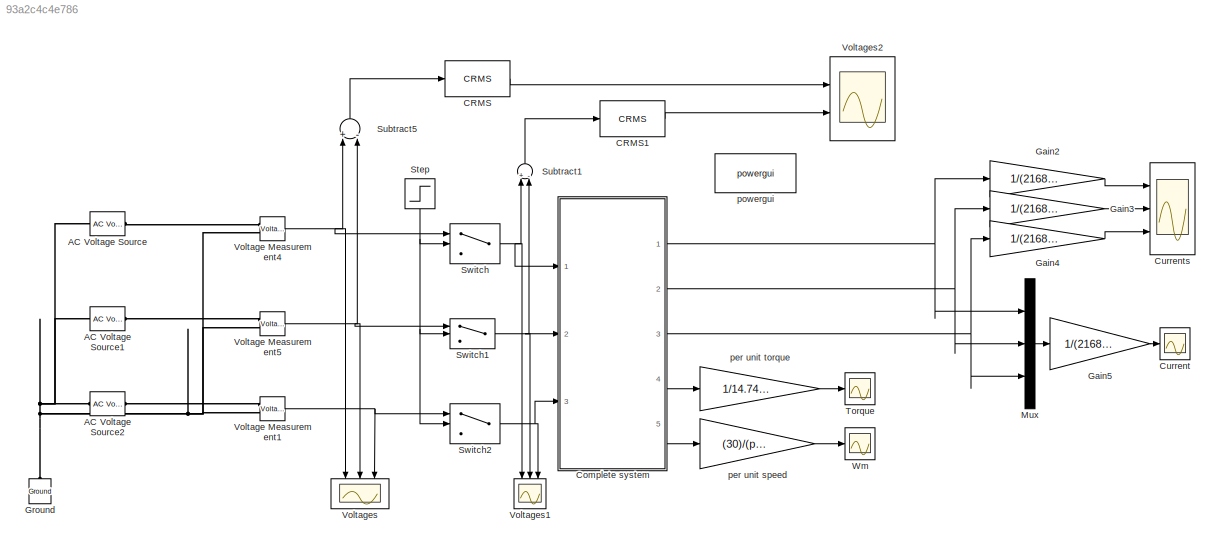
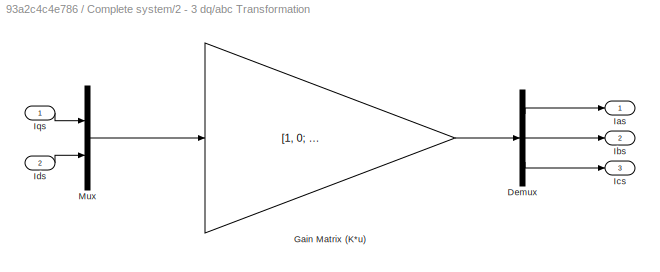
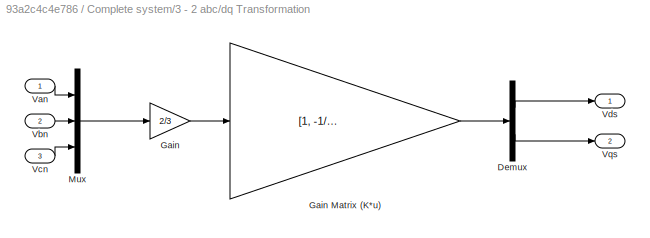
MODEL slx_93a2c4c4e786
KIND model
BLOCK [Reference] AC Voltage Source  REF=powerlib/Electrical
Sources/AC Voltage Source
  Amplitude = 563.38264
  Frequency = 50
  Measurements = None
  Phase = 90
  Ports = [0, 0, 0, 0, 0, 1, 1]
  SampleTime = 0
  SourceBlock = powerlib/Electrical\nSources/AC Voltage Source
  SourceType = AC Voltage Source
BLOCK [Reference] AC Voltage Source1  REF=powerlib/Electrical
Sources/AC Voltage Source
  Amplitude = 563.38264
  Frequency = 50
  Measurements = None
  Phase = -30
  Ports = [0, 0, 0, 0, 0, 1, 1]
  SampleTime = 0
  SourceBlock = powerlib/Electrical\nSources/AC Voltage Source
  SourceType = AC Voltage Source
BLOCK [Reference] AC Voltage Source2  REF=powerlib/Electrical
Sources/AC Voltage Source
  Amplitude = 563.38264
  Frequency = 50
  Measurements = None
  Phase = -150
  Ports = [0, 0, 0, 0, 0, 1, 1]
  SampleTime = 0
  SourceBlock = powerlib/Electrical\nSources/AC Voltage Source
  SourceType = AC Voltage Source
BLOCK [Reference] CRMS  REF=sdolib/RMS Blocks/CRMS
  Ports = [1, 1]
  SourceBlock = sdolib/RMS Blocks/CRMS
  SourceType = Continuous RMS Value Block
BLOCK [Reference] CRMS1  REF=sdolib/RMS Blocks/CRMS
  Ports = [1, 1]
  SourceBlock = sdolib/RMS Blocks/CRMS
  SourceType = Continuous RMS Value Block
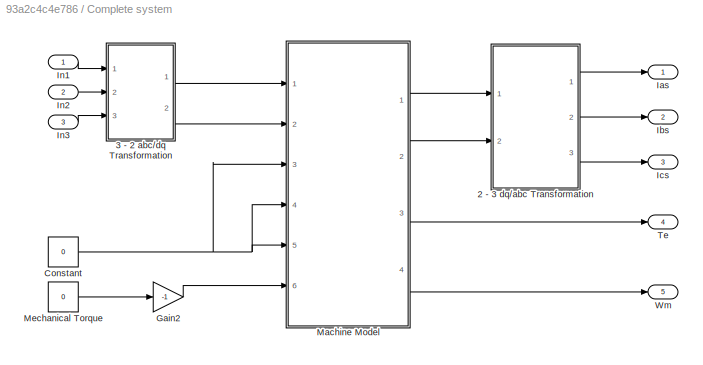
BLOCK [SubSystem] Complete system
  FunctionWithSeparateData = off
  MaskHideContents = off
  MinAlgLoopOccurrences = off
  Opaque = off
  Ports = [3, 5]
  PropExecContextOutsideSubsystem = off
  RTWSystemCode = Auto
  RequestExecContextInheritance = off
BLOCK [SubSystem] Complete system/2 - 3 dq//abc Transformation
  FunctionWithSeparateData = off
  MaskHideContents = off
  MinAlgLoopOccurrences = off
  Opaque = off
  Ports = [2, 3]
  PropExecContextOutsideSubsystem = off
  RTWSystemCode = Auto
  RequestExecContextInheritance = off
BLOCK [Demux] Complete system/2 - 3 dq//abc Transformation/Demux
  DisplayOption = bar
  Outputs = 3
  Ports = [1, 3]
BLOCK [Gain] Complete system/2 - 3 dq//abc Transformation/Gain Matrix (K*u)
  Gain = [1, 0; -1/2 sqrt(3)/2; -1/2, -sqrt(3)/2]
  Multiplication = Matrix(K*u)
  OutDataTypeStr = Inherit: Inherit via internal rule
  ParamDataTypeStr = Inherit: Inherit via internal rule
  SaturateOnIntegerOverflow = off
BLOCK [Outport] Complete system/2 - 3 dq//abc Transformation/Ias
  IconDisplay = Port number
BLOCK [Outport] Complete system/2 - 3 dq//abc Transformation/Ibs
  IconDisplay = Port number
  Port = 2
BLOCK [Outport] Complete system/2 - 3 dq//abc Transformation/Ics
  IconDisplay = Port number
  Port = 3
BLOCK [Inport] Complete system/2 - 3 dq//abc Transformation/Ids
  IconDisplay = Port number
  Port = 2
BLOCK [Inport] Complete system/2 - 3 dq//abc Transformation/Iqs
  IconDisplay = Port number
BLOCK [Mux] Complete system/2 - 3 dq//abc Transformation/Mux
  DisplayOption = bar
  Inputs = 2
  Ports = [2, 1]
BLOCK [SubSystem] Complete system/3 - 2 abc//dq Transformation
  FunctionWithSeparateData = off
  MaskHideContents = off
  MinAlgLoopOccurrences = off
  Opaque = off
  Ports = [3, 2]
  PropExecContextOutsideSubsystem = off
  RTWSystemCode = Auto
  RequestExecContextInheritance = off
BLOCK [Demux] Complete system/3 - 2 abc//dq Transformation/Demux
  DisplayOption = bar
  Outputs = 2
  Ports = [1, 2]
BLOCK [Gain] Complete system/3 - 2 abc//dq Transformation/Gain
  Gain = 2/3
  OutDataTypeStr = Inherit: Inherit via internal rule
  ParamDataTypeStr = Inherit: Inherit via internal rule
  SaturateOnIntegerOverflow = off
BLOCK [Gain] Complete system/3 - 2 abc//dq Transformation/Gain Matrix (K*u)
  Gain = [1, -1/2, -1/2; 0, sqrt(3)/2, - sqrt(3)/2]
  Multiplication = Matrix(K*u)
  OutDataTypeStr = Inherit: Inherit via internal rule
  ParamDataTypeStr = Inherit: Inherit via internal rule
  SaturateOnIntegerOverflow = off
BLOCK [Mux] Complete system/3 - 2 abc//dq Transformation/Mux
  DisplayOption = bar
  Inputs = 3
  Ports = [3, 1]
BLOCK [Inport] Complete system/3 - 2 abc//dq Transformation/Van
  IconDisplay = Port number
BLOCK [Inport] Complete system/3 - 2 abc//dq Transformation/Vbn
  IconDisplay = Port number
  Port = 2
BLOCK [Inport] Complete system/3 - 2 abc//dq Transformation/Vcn
  IconDisplay = Port number
  Port = 3
BLOCK [Outport] Complete system/3 - 2 abc//dq Transformation/Vds
  IconDisplay = Port number
BLOCK [Outport] Complete system/3 - 2 abc//dq Transformation/Vqs
  IconDisplay = Port number
  Port = 2
BLOCK [Constant] Complete system/Constant
  Value = 0
BLOCK [Gain] Complete system/Gain2
  Gain = -1
  OutDataTypeStr = Inherit: Inherit via internal rule
  ParamDataTypeStr = double
  SaturateOnIntegerOverflow = off
BLOCK [Outport] Complete system/Ias
  IconDisplay = Port number
BLOCK [Outport] Complete system/Ibs
  IconDisplay = Port number
  Port = 2
BLOCK [Outport] Complete system/Ics
  IconDisplay = Port number
  Port = 3
BLOCK [Inport] Complete system/In1
  IconDisplay = Port number
BLOCK [Inport] Complete system/In2
  IconDisplay = Port number
  Port = 2
BLOCK [Inport] Complete system/In3
  IconDisplay = Port number
  Port = 3
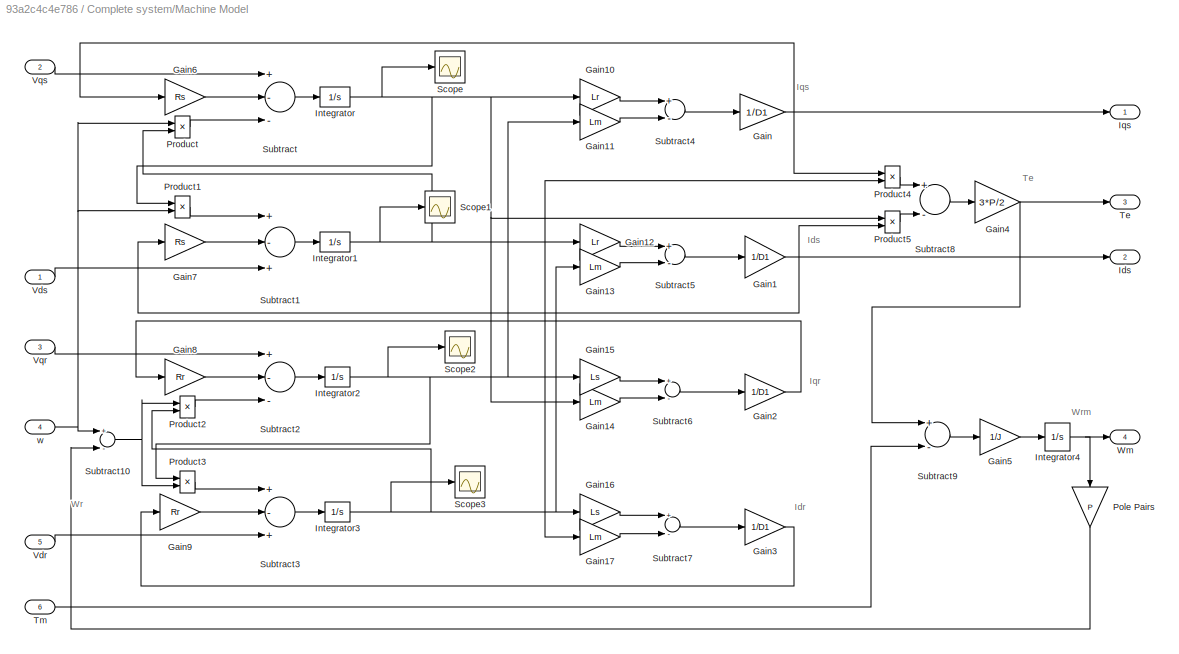
BLOCK [SubSystem] Complete system/Machine Model
  FunctionWithSeparateData = off
  MaskHideContents = off
  MinAlgLoopOccurrences = off
  Opaque = off
  Ports = [6, 4]
  PropExecContextOutsideSubsystem = off
  RTWSystemCode = Auto
  RequestExecContextInheritance = off
BLOCK [Gain] Complete system/Machine Model/Gain
  Gain = 1/D1
  OutDataTypeStr = Inherit: Inherit via internal rule
  ParamDataTypeStr = Inherit: Inherit via internal rule
  SaturateOnIntegerOverflow = off
BLOCK [Gain] Complete system/Machine Model/Gain1
  Gain = 1/D1
  OutDataTypeStr = Inherit: Inherit via internal rule
  ParamDataTypeStr = Inherit: Inherit via internal rule
  SaturateOnIntegerOverflow = off
BLOCK [Gain] Complete system/Machine Model/Gain10
  Gain = Lr
  OutDataTypeStr = Inherit: Inherit via internal rule
  ParamDataTypeStr = Inherit: Inherit via internal rule
  SaturateOnIntegerOverflow = off
BLOCK [Gain] Complete system/Machine Model/Gain11
  Gain = Lm
  OutDataTypeStr = Inherit: Inherit via internal rule
  ParamDataTypeStr = Inherit: Inherit via internal rule
  SaturateOnIntegerOverflow = off
BLOCK [Gain] Complete system/Machine Model/Gain12
  Gain = Lr
  OutDataTypeStr = Inherit: Inherit via internal rule
  ParamDataTypeStr = Inherit: Inherit via internal rule
  SaturateOnIntegerOverflow = off
BLOCK [Gain] Complete system/Machine Model/Gain13
  Gain = Lm
  OutDataTypeStr = Inherit: Inherit via internal rule
  ParamDataTypeStr = Inherit: Inherit via internal rule
  SaturateOnIntegerOverflow = off
BLOCK [Gain] Complete system/Machine Model/Gain14
  Gain = Lm
  OutDataTypeStr = Inherit: Inherit via internal rule
  ParamDataTypeStr = Inherit: Inherit via internal rule
  SaturateOnIntegerOverflow = off
BLOCK [Gain] Complete system/Machine Model/Gain15
  Gain = Ls
  OutDataTypeStr = Inherit: Inherit via internal rule
  ParamDataTypeStr = Inherit: Inherit via internal rule
  SaturateOnIntegerOverflow = off
BLOCK [Gain] Complete system/Machine Model/Gain16
  Gain = Ls
  OutDataTypeStr = Inherit: Inherit via internal rule
  ParamDataTypeStr = Inherit: Inherit via internal rule
  SaturateOnIntegerOverflow = off
BLOCK [Gain] Complete system/Machine Model/Gain17
  Gain = Lm
  OutDataTypeStr = Inherit: Inherit via internal rule
  ParamDataTypeStr = Inherit: Inherit via internal rule
  SaturateOnIntegerOverflow = off
BLOCK [Gain] Complete system/Machine Model/Gain2
  Gain = 1/D1
  OutDataTypeStr = Inherit: Inherit via internal rule
  ParamDataTypeStr = Inherit: Inherit via internal rule
  SaturateOnIntegerOverflow = off
BLOCK [Gain] Complete system/Machine Model/Gain3
  Gain = 1/D1
  OutDataTypeStr = Inherit: Inherit via internal rule
  ParamDataTypeStr = Inherit: Inherit via internal rule
  SaturateOnIntegerOverflow = off
BLOCK [Gain] Complete system/Machine Model/Gain4
  Gain = 3*P/2
  OutDataTypeStr = Inherit: Inherit via internal rule
  ParamDataTypeStr = Inherit: Inherit via internal rule
  SaturateOnIntegerOverflow = off
BLOCK [Gain] Complete system/Machine Model/Gain5
  Gain = 1/J
  OutDataTypeStr = Inherit: Inherit via internal rule
  ParamDataTypeStr = Inherit: Inherit via internal rule
  SaturateOnIntegerOverflow = off
BLOCK [Gain] Complete system/Machine Model/Gain6
  Gain = Rs
  OutDataTypeStr = Inherit: Inherit via internal rule
  ParamDataTypeStr = Inherit: Inherit via internal rule
  SaturateOnIntegerOverflow = off
BLOCK [Gain] Complete system/Machine Model/Gain7
  Gain = Rs
  OutDataTypeStr = Inherit: Inherit via internal rule
  ParamDataTypeStr = Inherit: Inherit via internal rule
  SaturateOnIntegerOverflow = off
BLOCK [Gain] Complete system/Machine Model/Gain8
  Gain = Rr
  OutDataTypeStr = Inherit: Inherit via internal rule
  ParamDataTypeStr = Inherit: Inherit via internal rule
  SaturateOnIntegerOverflow = off
BLOCK [Gain] Complete system/Machine Model/Gain9
  Gain = Rr
  OutDataTypeStr = Inherit: Inherit via internal rule
  ParamDataTypeStr = Inherit: Inherit via internal rule
  SaturateOnIntegerOverflow = off
BLOCK [Outport] Complete system/Machine Model/Ids
  IconDisplay = Port number
  Port = 2
BLOCK [Integrator] Complete system/Machine Model/Integrator
  Ports = [1, 1]
BLOCK [Integrator] Complete system/Machine Model/Integrator1
  Ports = [1, 1]
BLOCK [Integrator] Complete system/Machine Model/Integrator2
  Ports = [1, 1]
BLOCK [Integrator] Complete system/Machine Model/Integrator3
  Ports = [1, 1]
BLOCK [Integrator] Complete system/Machine Model/Integrator4
  IgnoreLimit = on
  InitialCondition = 151.843644924
  Ports = [1, 1]
BLOCK [Outport] Complete system/Machine Model/Iqs
  IconDisplay = Port number
BLOCK [Gain] Complete system/Machine Model/Pole Pairs
  Gain = P
  OutDataTypeStr = Inherit: Inherit via internal rule
  ParamDataTypeStr = Inherit: Inherit via internal rule
  SaturateOnIntegerOverflow = off
BLOCK [Product] Complete system/Machine Model/Product
  InputSameDT = off
  OutDataTypeStr = Inherit: Inherit via internal rule
  Ports = [2, 1]
  RndMeth = Floor
  SaturateOnIntegerOverflow = off
BLOCK [Product] Complete system/Machine Model/Product1
  InputSameDT = off
  OutDataTypeStr = Inherit: Inherit via internal rule
  Ports = [2, 1]
  RndMeth = Floor
  SaturateOnIntegerOverflow = off
BLOCK [Product] Complete system/Machine Model/Product2
  InputSameDT = off
  OutDataTypeStr = Inherit: Inherit via internal rule
  Ports = [2, 1]
  RndMeth = Floor
  SaturateOnIntegerOverflow = off
BLOCK [Product] Complete system/Machine Model/Product3
  InputSameDT = off
  OutDataTypeStr = Inherit: Inherit via internal rule
  Ports = [2, 1]
  RndMeth = Floor
  SaturateOnIntegerOverflow = off
BLOCK [Product] Complete system/Machine Model/Product4
  InputSameDT = off
  OutDataTypeStr = Inherit: Inherit via internal rule
  Ports = [2, 1]
  RndMeth = Floor
  SaturateOnIntegerOverflow = off
BLOCK [Product] Complete system/Machine Model/Product5
  InputSameDT = off
  OutDataTypeStr = Inherit: Inherit via internal rule
  Ports = [2, 1]
  RndMeth = Floor
  SaturateOnIntegerOverflow = off
BLOCK [Scope] Complete system/Machine Model/Scope
  DataFormat = StructureWithTime
  Floating = off
  LimitDataPoints = off
  NumInputPorts = 1
  Ports = [1]
  SampleTime = 0
  SaveName = ScopeData3
  ShowLegends = off
BLOCK [Scope] Complete system/Machine Model/Scope1
  DataFormat = StructureWithTime
  Floating = off
  LimitDataPoints = off
  NumInputPorts = 1
  Ports = [1]
  SampleTime = 0
  SaveName = ScopeData4
  ShowLegends = off
BLOCK [Scope] Complete system/Machine Model/Scope2
  DataFormat = StructureWithTime
  Floating = off
  LimitDataPoints = off
  NumInputPorts = 1
  Ports = [1]
  SampleTime = 0
  SaveName = ScopeData5
  ShowLegends = off
BLOCK [Scope] Complete system/Machine Model/Scope3
  DataFormat = StructureWithTime
  Floating = off
  LimitDataPoints = off
  NumInputPorts = 1
  Ports = [1]
  SampleTime = 0
  SaveName = ScopeData6
  ShowLegends = off
BLOCK [Sum] Complete system/Machine Model/Subtract
  InputSameDT = off
  Inputs = +--
  OutDataTypeStr = Inherit: Inherit via internal rule
  Ports = [3, 1]
  SaturateOnIntegerOverflow = off
BLOCK [Sum] Complete system/Machine Model/Subtract1
  InputSameDT = off
  Inputs = +-+
  OutDataTypeStr = Inherit: Inherit via internal rule
  Ports = [3, 1]
  SaturateOnIntegerOverflow = off
BLOCK [Sum] Complete system/Machine Model/Subtract10
  InputSameDT = off
  Inputs = +-
  OutDataTypeStr = Inherit: Inherit via internal rule
  Ports = [2, 1]
  SaturateOnIntegerOverflow = off
BLOCK [Sum] Complete system/Machine Model/Subtract2
  InputSameDT = off
  Inputs = +--
  OutDataTypeStr = Inherit: Inherit via internal rule
  Ports = [3, 1]
  SaturateOnIntegerOverflow = off
BLOCK [Sum] Complete system/Machine Model/Subtract3
  InputSameDT = off
  Inputs = +-+
  OutDataTypeStr = Inherit: Inherit via internal rule
  Ports = [3, 1]
  SaturateOnIntegerOverflow = off
BLOCK [Sum] Complete system/Machine Model/Subtract4
  InputSameDT = off
  Inputs = +-
  OutDataTypeStr = Inherit: Inherit via internal rule
  Ports = [2, 1]
  SaturateOnIntegerOverflow = off
BLOCK [Sum] Complete system/Machine Model/Subtract5
  InputSameDT = off
  Inputs = +-
  OutDataTypeStr = Inherit: Inherit via internal rule
  Ports = [2, 1]
  SaturateOnIntegerOverflow = off
BLOCK [Sum] Complete system/Machine Model/Subtract6
  InputSameDT = off
  Inputs = +-
  OutDataTypeStr = Inherit: Inherit via internal rule
  Ports = [2, 1]
  SaturateOnIntegerOverflow = off
BLOCK [Sum] Complete system/Machine Model/Subtract7
  InputSameDT = off
  Inputs = +-
  OutDataTypeStr = Inherit: Inherit via internal rule
  Ports = [2, 1]
  SaturateOnIntegerOverflow = off
BLOCK [Sum] Complete system/Machine Model/Subtract8
  InputSameDT = off
  Inputs = +-
  OutDataTypeStr = Inherit: Inherit via internal rule
  Ports = [2, 1]
  SaturateOnIntegerOverflow = off
BLOCK [Sum] Complete system/Machine Model/Subtract9
  InputSameDT = off
  Inputs = +-
  OutDataTypeStr = Inherit: Inherit via internal rule
  Ports = [2, 1]
  SaturateOnIntegerOverflow = off
BLOCK [Outport] Complete system/Machine Model/Te
  IconDisplay = Port number
  Port = 3
BLOCK [Inport] Complete system/Machine Model/Tm
  IconDisplay = Port number
  Port = 6
BLOCK [Inport] Complete system/Machine Model/Vdr
  IconDisplay = Port number
  Port = 5
BLOCK [Inport] Complete system/Machine Model/Vds
  IconDisplay = Port number
BLOCK [Inport] Complete system/Machine Model/Vqr
  IconDisplay = Port number
  Port = 3
BLOCK [Inport] Complete system/Machine Model/Vqs 
  IconDisplay = Port number
  Port = 2
BLOCK [Outport] Complete system/Machine Model/Wm
  IconDisplay = Port number
  Port = 4
BLOCK [Inport] Complete system/Machine Model/w
  IconDisplay = Port number
  Port = 4
BLOCK [Constant] Complete system/Mechanical Torque
  Value = 0
BLOCK [Outport] Complete system/Te
  IconDisplay = Port number
  Port = 4
BLOCK [Outport] Complete system/Wm
  IconDisplay = Port number
  Port = 5
BLOCK [Scope] Current
  Floating = off
  LimitDataPoints = off
  NumInputPorts = 1
  Ports = [1]
  ShowLegends = off
BLOCK [Scope] Currents
  Floating = off
  LimitDataPoints = off
  NumInputPorts = 3
  Ports = [3]
  ShowLegends = off
  YMax = 5~5~5
  YMin = -5~-5~-5
BLOCK [Gain] Gain2
  Gain = 1/(2168*sqrt(2))
  OutDataTypeStr = Inherit: Inherit via internal rule
  ParamDataTypeStr = Inherit: Inherit via internal rule
  SaturateOnIntegerOverflow = off
BLOCK [Gain] Gain3
  Gain = 1/(2168*sqrt(2))
  OutDataTypeStr = Inherit: Inherit via internal rule
  ParamDataTypeStr = Inherit: Inherit via internal rule
  SaturateOnIntegerOverflow = off
BLOCK [Gain] Gain4
  Gain = 1/(2168*sqrt(2))
  OutDataTypeStr = Inherit: Inherit via internal rule
  ParamDataTypeStr = Inherit: Inherit via internal rule
  SaturateOnIntegerOverflow = off
BLOCK [Gain] Gain5
  Gain = 1/(2168*sqrt(2))
  OutDataTypeStr = Inherit: Inherit via internal rule
  ParamDataTypeStr = Inherit: Inherit via internal rule
  SaturateOnIntegerOverflow = off
BLOCK [Reference] Ground  REF=powerlib/Elements/Ground
  LConnTagsString = a
  Ports = [0, 0, 0, 0, 0, 1]
  SourceBlock = powerlib/Elements/Ground
  SourceType = Ground
BLOCK [Mux] Mux
  DisplayOption = bar
  Inputs = 3
  Ports = [3, 1]
BLOCK [Step] Step
  SampleTime = 0
  Time = 0
BLOCK [Sum] Subtract1
  InputSameDT = off
  Inputs = +-
  OutDataTypeStr = Inherit: Inherit via internal rule
  Ports = [2, 1]
  SaturateOnIntegerOverflow = off
BLOCK [Sum] Subtract5
  InputSameDT = off
  Inputs = +-
  OutDataTypeStr = Inherit: Inherit via internal rule
  Ports = [2, 1]
  SaturateOnIntegerOverflow = off
BLOCK [Switch] Switch
  Criteria = u2 > Threshold
  InputSameDT = off
  SaturateOnIntegerOverflow = off
BLOCK [Switch] Switch1
  Criteria = u2 > Threshold
  InputSameDT = off
  SaturateOnIntegerOverflow = off
BLOCK [Switch] Switch2
  Criteria = u2 > Threshold
  InputSameDT = off
  SaturateOnIntegerOverflow = off
BLOCK [Scope] Torque
  Floating = off
  LimitDataPoints = off
  NumInputPorts = 1
  Ports = [1]
  ShowLegends = off
  TimeRange = 1
  YMax = 2.75
  YMin = -2
BLOCK [Reference] Voltage Measurement1  REF=powerlib/Measurements/Voltage Measurement
  OutputType = Complex
  PSBequivalent = 0
  PhasorSimulation = off
  Ports = [0, 1, 0, 0, 0, 2]
  SourceBlock = powerlib/Measurements/Voltage Measurement
  SourceType = Voltage Measurement
  UserDataPersistent = on
BLOCK [Reference] Voltage Measurement4  REF=powerlib/Measurements/Voltage Measurement
  OutputType = Complex
  PSBequivalent = 0
  PhasorSimulation = off
  Ports = [0, 1, 0, 0, 0, 2]
  SourceBlock = powerlib/Measurements/Voltage Measurement
  SourceType = Voltage Measurement
  UserDataPersistent = on
BLOCK [Reference] Voltage Measurement5  REF=powerlib/Measurements/Voltage Measurement
  OutputType = Complex
  PSBequivalent = 0
  PhasorSimulation = off
  Ports = [0, 1, 0, 0, 0, 2]
  SourceBlock = powerlib/Measurements/Voltage Measurement
  SourceType = Voltage Measurement
  UserDataPersistent = on
BLOCK [Scope] Voltages
  Floating = off
  LimitDataPoints = off
  NumInputPorts = 3
  Ports = [3]
  ShowLegends = off
  YMax = 5~5~5
  YMin = -5~-5~-5
BLOCK [Scope] Voltages1
  Floating = off
  LimitDataPoints = off
  NumInputPorts = 3
  Ports = [3]
  SaveName = ScopeData1
  ShowLegends = off
  YMax = 5~5~5
  YMin = -5~-5~-5
BLOCK [Scope] Voltages2
  Floating = off
  LimitDataPoints = off
  NumInputPorts = 2
  Ports = [2]
  SaveName = ScopeData2
  ShowLegends = off
  YMax = 5~5
  YMin = -5~-5
BLOCK [Scope] Wm
  Floating = off
  LimitDataPoints = off
  NumInputPorts = 1
  Ports = [1]
  ShowLegends = off
  YMax = 0.5
  YMin = 1.38778e-17
BLOCK [Gain] per unit speed
  Gain = (30)/(pi*1512)
  OutDataTypeStr = Inherit: Inherit via internal rule
  ParamDataTypeStr = Inherit: Inherit via internal rule
  SaturateOnIntegerOverflow = off
BLOCK [Gain] per unit torque
  Gain = 1/14.74e3
  OutDataTypeStr = Inherit: Inherit via internal rule
  ParamDataTypeStr = Inherit: Inherit via internal rule
  SaturateOnIntegerOverflow = off
BLOCK [Reference] powergui  REF=powerlib/powergui
  DisableRonSwitches = off
  DisableSnubberDevices = off
  DisableVfSwitches = off
  DisplayEquations = off
  DisplayStyle = 1
  EnableUseOfTLC = off
  ErrMax = 1e-4
  Frange = [0:2:500]
  FreqAxis = off
  FunctionMessages = off
  HookPort = off
  Interpol = off
  Iterations = 50
  MaxFrequency = 1000
  Pbase = 100e6
  Ports = []
  Priority = 1
  ResistiveCurrentMeasurement = off
  RestoreLinks = warning
  RmsSteady = 1
  SPID = off
  SampleTime = 50e-6
  ShowGrid = off
  SolverType = Tustin
  SourceBlock = powerlib/powergui
  SourceType = PSB option menu block
  StartTime = 0.0
  SwTol = 0
  Ts = 0
  UnitsV = kV
  UnitsW = MW
  UserDataPersistent = on
  Xlog = on
  Ylog = off
  ZoomFFT = off
  cycles = 1
  display = off
  echomessages = off
  frequency = 50
  frequencyindice = 50
  frequencyindicesteady = 1
  fundamental = 60
  methode = off
  save = off
  variable = ZData
  x0status = blocks
ANNOTATION Complete system/Machine Model: Idr
ANNOTATION Complete system/Machine Model: Ids
ANNOTATION Complete system/Machine Model: Iqr
ANNOTATION Complete system/Machine Model: Iqs
ANNOTATION Complete system/Machine Model: Te
ANNOTATION Complete system/Machine Model: Wr
ANNOTATION Complete system/Machine Model: Wrm
LINE CRMS1:1 -> Voltages2:2
LINE CRMS:1 -> Voltages2:1
LINE Complete system/2 - 3 dq//abc Transformation/Demux:1 -> Complete system/2 - 3 dq//abc Transformation/Ias:1
LINE Complete system/2 - 3 dq//abc Transformation/Demux:2 -> Complete system/2 - 3 dq//abc Transformation/Ibs:1
LINE Complete system/2 - 3 dq//abc Transformation/Demux:3 -> Complete system/2 - 3 dq//abc Transformation/Ics:1
LINE Complete system/2 - 3 dq//abc Transformation/Gain Matrix (K*u):1 -> Complete system/2 - 3 dq//abc Transformation/Demux:1
LINE Complete system/2 - 3 dq//abc Transformation/Ids:1 -> Complete system/2 - 3 dq//abc Transformation/Mux:2
LINE Complete system/2 - 3 dq//abc Transformation/Iqs:1 -> Complete system/2 - 3 dq//abc Transformation/Mux:1
LINE Complete system/2 - 3 dq//abc Transformation/Mux:1 -> Complete system/2 - 3 dq//abc Transformation/Gain Matrix (K*u):1
LINE Complete system/2 - 3 dq//abc Transformation:1 -> Complete system/Ias:1
LINE Complete system/2 - 3 dq//abc Transformation:2 -> Complete system/Ibs:1
LINE Complete system/2 - 3 dq//abc Transformation:3 -> Complete system/Ics:1
LINE Complete system/3 - 2 abc//dq Transformation/Demux:1 -> Complete system/3 - 2 abc//dq Transformation/Vds:1
LINE Complete system/3 - 2 abc//dq Transformation/Demux:2 -> Complete system/3 - 2 abc//dq Transformation/Vqs:1
LINE Complete system/3 - 2 abc//dq Transformation/Gain Matrix (K*u):1 -> Complete system/3 - 2 abc//dq Transformation/Demux:1
LINE Complete system/3 - 2 abc//dq Transformation/Gain:1 -> Complete system/3 - 2 abc//dq Transformation/Gain Matrix (K*u):1
LINE Complete system/3 - 2 abc//dq Transformation/Mux:1 -> Complete system/3 - 2 abc//dq Transformation/Gain:1
LINE Complete system/3 - 2 abc//dq Transformation/Van:1 -> Complete system/3 - 2 abc//dq Transformation/Mux:1
LINE Complete system/3 - 2 abc//dq Transformation/Vbn:1 -> Complete system/3 - 2 abc//dq Transformation/Mux:2
LINE Complete system/3 - 2 abc//dq Transformation/Vcn:1 -> Complete system/3 - 2 abc//dq Transformation/Mux:3
LINE Complete system/3 - 2 abc//dq Transformation:1 -> Complete system/Machine Model:1
LINE Complete system/3 - 2 abc//dq Transformation:2 -> Complete system/Machine Model:2
NET Complete system/Constant:1 -> Complete system/Machine Model:3, Complete system/Machine Model:4, Complete system/Machine Model:5
LINE Complete system/Gain2:1 -> Complete system/Machine Model:6
LINE Complete system/In1:1 -> Complete system/3 - 2 abc//dq Transformation:1
LINE Complete system/In2:1 -> Complete system/3 - 2 abc//dq Transformation:2
LINE Complete system/In3:1 -> Complete system/3 - 2 abc//dq Transformation:3
LINE Complete system/Machine Model/Gain10:1 -> Complete system/Machine Model/Subtract4:1
LINE Complete system/Machine Model/Gain11:1 -> Complete system/Machine Model/Subtract4:2
LINE Complete system/Machine Model/Gain12:1 -> Complete system/Machine Model/Subtract5:1
LINE Complete system/Machine Model/Gain13:1 -> Complete system/Machine Model/Subtract5:2
LINE Complete system/Machine Model/Gain14:1 -> Complete system/Machine Model/Subtract6:2
LINE Complete system/Machine Model/Gain15:1 -> Complete system/Machine Model/Subtract6:1
LINE Complete system/Machine Model/Gain16:1 -> Complete system/Machine Model/Subtract7:1
LINE Complete system/Machine Model/Gain17:1 -> Complete system/Machine Model/Subtract7:2
NET Complete system/Machine Model/Gain1:1 -> Complete system/Machine Model/Gain7:1, Complete system/Machine Model/Ids:1, Complete system/Machine Model/Product5:2
LINE Complete system/Machine Model/Gain2:1 -> Complete system/Machine Model/Gain8:1
LINE Complete system/Machine Model/Gain3:1 -> Complete system/Machine Model/Gain9:1
NET Complete system/Machine Model/Gain4:1 -> Complete system/Machine Model/Subtract9:1, Complete system/Machine Model/Te:1
LINE Complete system/Machine Model/Gain5:1 -> Complete system/Machine Model/Integrator4:1
LINE Complete system/Machine Model/Gain6:1 -> Complete system/Machine Model/Subtract:2
LINE Complete system/Machine Model/Gain7:1 -> Complete system/Machine Model/Subtract1:2
LINE Complete system/Machine Model/Gain8:1 -> Complete system/Machine Model/Subtract2:2
LINE Complete system/Machine Model/Gain9:1 -> Complete system/Machine Model/Subtract3:2
NET Complete system/Machine Model/Gain:1 -> Complete system/Machine Model/Gain6:1, Complete system/Machine Model/Iqs:1, Complete system/Machine Model/Product4:1
NET Complete system/Machine Model/Integrator1:1 -> Complete system/Machine Model/Gain12:1, Complete system/Machine Model/Gain17:1, Complete system/Machine Model/Product4:2, Complete system/Machine Model/Product:2, Complete system/Machine Model/Scope1:1
NET Complete system/Machine Model/Integrator2:1 -> Complete system/Machine Model/Gain11:1, Complete system/Machine Model/Gain15:1, Complete system/Machine Model/Product3:1, Complete system/Machine Model/Scope2:1
NET Complete system/Machine Model/Integrator3:1 -> Complete system/Machine Model/Gain13:1, Complete system/Machine Model/Gain16:1, Complete system/Machine Model/Product2:2, Complete system/Machine Model/Scope3:1
NET Complete system/Machine Model/Integrator4:1 -> Complete system/Machine Model/Pole Pairs:1, Complete system/Machine Model/Wm:1
NET Complete system/Machine Model/Integrator:1 -> Complete system/Machine Model/Gain10:1, Complete system/Machine Model/Gain14:1, Complete system/Machine Model/Product1:1, Complete system/Machine Model/Product5:1, Complete system/Machine Model/Scope:1
LINE Complete system/Machine Model/Pole Pairs:1 -> Complete system/Machine Model/Subtract10:2
LINE Complete system/Machine Model/Product1:1 -> Complete system/Machine Model/Subtract1:1
LINE Complete system/Machine Model/Product2:1 -> Complete system/Machine Model/Subtract2:3
LINE Complete system/Machine Model/Product3:1 -> Complete system/Machine Model/Subtract3:1
LINE Complete system/Machine Model/Product4:1 -> Complete system/Machine Model/Subtract8:1
LINE Complete system/Machine Model/Product5:1 -> Complete system/Machine Model/Subtract8:2
LINE Complete system/Machine Model/Product:1 -> Complete system/Machine Model/Subtract:3
NET Complete system/Machine Model/Subtract10:1 -> Complete system/Machine Model/Product2:1, Complete system/Machine Model/Product3:2
LINE Complete system/Machine Model/Subtract1:1 -> Complete system/Machine Model/Integrator1:1
LINE Complete system/Machine Model/Subtract2:1 -> Complete system/Machine Model/Integrator2:1
LINE Complete system/Machine Model/Subtract3:1 -> Complete system/Machine Model/Integrator3:1
LINE Complete system/Machine Model/Subtract4:1 -> Complete system/Machine Model/Gain:1
LINE Complete system/Machine Model/Subtract5:1 -> Complete system/Machine Model/Gain1:1
LINE Complete system/Machine Model/Subtract6:1 -> Complete system/Machine Model/Gain2:1
LINE Complete system/Machine Model/Subtract7:1 -> Complete system/Machine Model/Gain3:1
LINE Complete system/Machine Model/Subtract8:1 -> Complete system/Machine Model/Gain4:1
LINE Complete system/Machine Model/Subtract9:1 -> Complete system/Machine Model/Gain5:1
LINE Complete system/Machine Model/Subtract:1 -> Complete system/Machine Model/Integrator:1
LINE Complete system/Machine Model/Tm:1 -> Complete system/Machine Model/Subtract9:2
LINE Complete system/Machine Model/Vdr:1 -> Complete system/Machine Model/Subtract3:3
LINE Complete system/Machine Model/Vds:1 -> Complete system/Machine Model/Subtract1:3
LINE Complete system/Machine Model/Vqr:1 -> Complete system/Machine Model/Subtract2:1
LINE Complete system/Machine Model/Vqs :1 -> Complete system/Machine Model/Subtract:1
NET Complete system/Machine Model/w:1 -> Complete system/Machine Model/Product1:2, Complete system/Machine Model/Product:1, Complete system/Machine Model/Subtract10:1
LINE Complete system/Machine Model:1 -> Complete system/2 - 3 dq//abc Transformation:1
LINE Complete system/Machine Model:2 -> Complete system/2 - 3 dq//abc Transformation:2
LINE Complete system/Machine Model:3 -> Complete system/Te:1
LINE Complete system/Machine Model:4 -> Complete system/Wm:1
LINE Complete system/Mechanical Torque:1 -> Complete system/Gain2:1
NET Complete system:1 -> Gain2:1, Mux:1
NET Complete system:2 -> Gain3:1, Mux:2
NET Complete system:3 -> Gain4:1, Mux:3
LINE Complete system:4 -> per unit torque:1
LINE Complete system:5 -> per unit speed:1
LINE Gain2:1 -> Currents:1
LINE Gain3:1 -> Currents:2
LINE Gain4:1 -> Currents:3
LINE Gain5:1 -> Current:1
LINE Mux:1 -> Gain5:1
NET Step:1 -> Switch1:2, Switch2:2, Switch:2
LINE Subtract1:1 -> CRMS1:1
LINE Subtract5:1 -> CRMS:1
NET Switch1:1 -> Complete system:2, Subtract1:2, Voltages1:2
NET Switch2:1 -> Complete system:3, Voltages1:3
NET Switch:1 -> Complete system:1, Subtract1:1, Voltages1:1
NET Voltage Measurement1:1 -> Switch2:1, Voltages:3
NET Voltage Measurement4:1 -> Subtract5:1, Switch:1, Voltages:1
NET Voltage Measurement5:1 -> Subtract5:2, Switch1:1, Voltages:2
LINE per unit speed:1 -> Wm:1
LINE per unit torque:1 -> Torque:1
PNET net1: AC Voltage Source1:LConn1 -- AC Voltage Source2:LConn1 -- AC Voltage Source:LConn1 -- Ground:LConn1 -- Voltage Measurement1:LConn2 -- Voltage Measurement4:LConn2 -- Voltage Measurement5:LConn2
PLINE AC Voltage Source1:RConn1 -- Voltage Measurement5:LConn1
PLINE AC Voltage Source2:RConn1 -- Voltage Measurement1:LConn1
PLINE AC Voltage Source:RConn1 -- Voltage Measurement4:LConn1
note: NET lines group one-source signal fan-out (src -> all destinations, sorted); 1:1 wires keep LINE; PNET lines group multi-terminal physical nets as a canonical sorted terminal list (undirected conserving connections); 2-terminal nets keep the pairwise PLINE form
